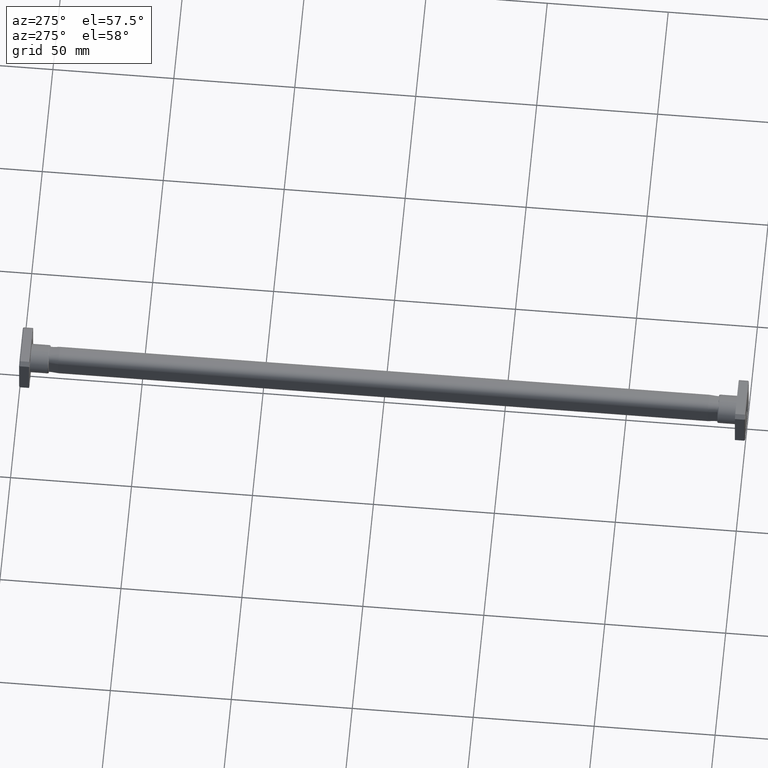
[diagram: clean part render]
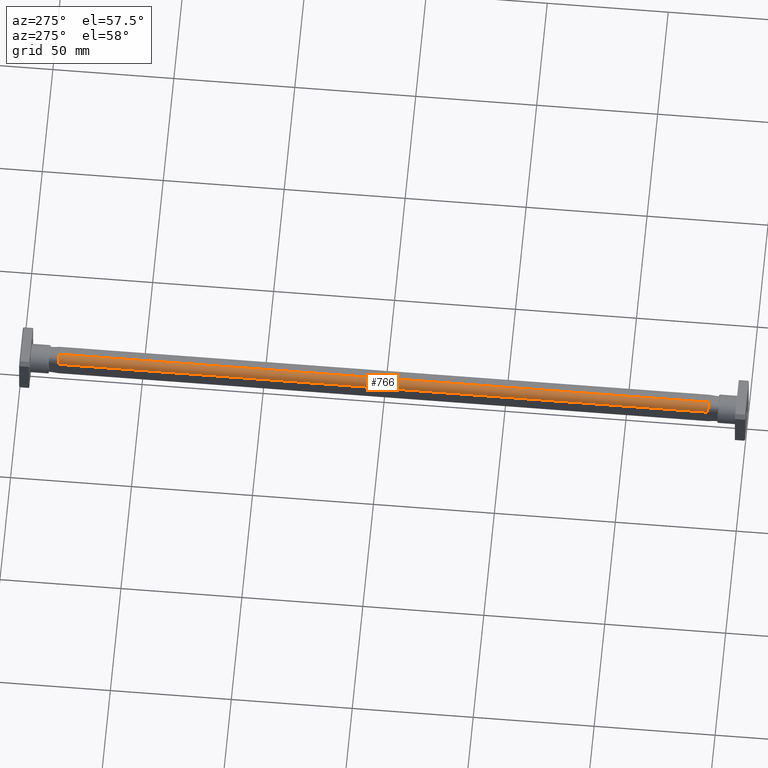
[diagram: same view with one face highlighted and labeled with its STEP entity id]
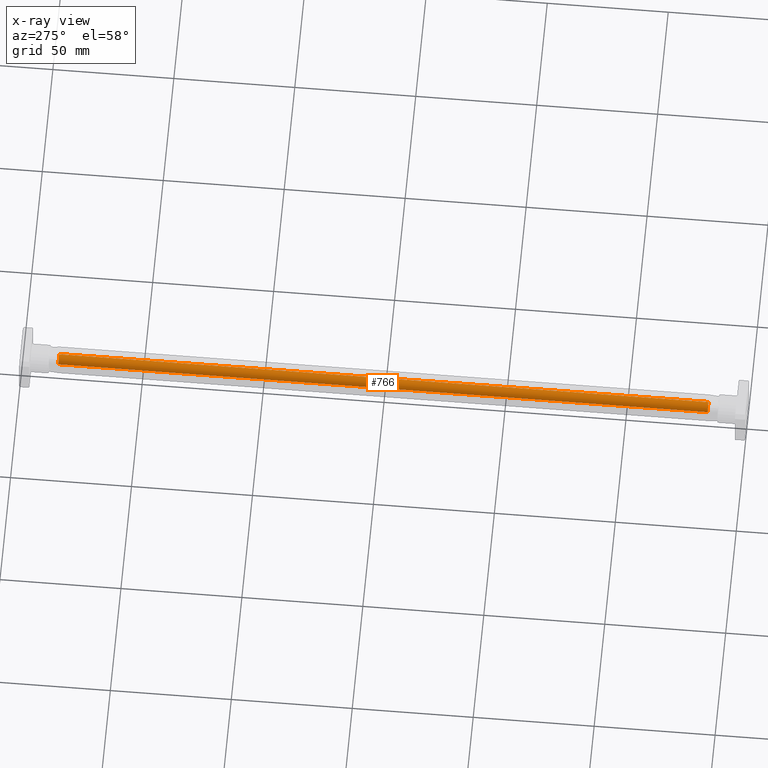
[diagram: x-ray of the same camera — body ghosted, the highlighted face saturated]
A machine part, auxiliary view. The second image highlights one B-rep face of the part: STEP entity #766.
The next image is the same camera in x-ray: the body ghosted, the highlighted face saturated — about 0% of this face is hidden behind the body in this view.
In plain terms, the highlighted cylindrical surface (edge-blend (fillet) strip) has radius 3 mm, axis along (0, -1, 0).
Its self-contained STEP definition (entity closure, byte-faithful):
#12 = DIRECTION ( 'NONE',  ( -3.469446951953613800E-015, 0.0000000000000000000, -1.000000000000000000 ) ) ;
#60 = DIRECTION ( 'NONE',  ( -0.0000000000000000000, 1.000000000000000000, -0.0000000000000000000 ) ) ;
#425 = CARTESIAN_POINT ( 'NONE',  ( -0.03937007874015724400, 11.18897637795275700, 0.1181102362204721300 ) ) ;
#442 = AXIS2_PLACEMENT_3D ( 'NONE', #425, #2720, #755 ) ;
#462 = ORIENTED_EDGE ( 'NONE', *, *, #948, .T. ) ;
#554 = ORIENTED_EDGE ( 'NONE', *, *, #2206, .T. ) ;
#596 = CARTESIAN_POINT ( 'NONE',  ( -0.03937007874015684100, 1.322834645669291700, 0.2362204724409446600 ) ) ;
#755 = DIRECTION ( 'NONE',  ( -3.469446951953613800E-015, 0.0000000000000000000, -1.000000000000000000 ) ) ;
#766 = ADVANCED_FACE ( 'Defeatured_0_14', ( #2513 ), #2410, .T. ) ;
#817 = VERTEX_POINT ( 'NONE', #2641 ) ;
#854 = AXIS2_PLACEMENT_3D ( 'NONE', #1606, #3921, #12 ) ;
#913 = DIRECTION ( 'NONE',  ( -0.0000000000000000000, 1.000000000000000000, -0.0000000000000000000 ) ) ;
#948 = EDGE_CURVE ( 'Defeatured_0_14+Defeatured_0_9+Defeatured_0_6+Defeatured_0_23', #963, #817, #2486, .T. ) ;
#963 = VERTEX_POINT ( 'NONE', #2818 ) ;
#977 = VECTOR ( 'NONE', #2725, 39.37007874015748100 ) ;
#1034 = VECTOR ( 'NONE', #913, 39.37007874015748100 ) ;
#1047 = DIRECTION ( 'NONE',  ( -3.469446951953613800E-015, 0.0000000000000000000, -1.000000000000000000 ) ) ;
#1400 = CARTESIAN_POINT ( 'NONE',  ( -0.1574803149606297000, 1.322834645669291700, 0.1181102362204725600 ) ) ;
#1606 = CARTESIAN_POINT ( 'NONE',  ( -0.03937007874015724400, 1.322834645669291700, 0.1181102362204721300 ) ) ;
#1608 = CARTESIAN_POINT ( 'NONE',  ( -0.1574803149605018800, 11.18897637795377900, 0.1181102362204725500 ) ) ;
#1691 = CARTESIAN_POINT ( 'NONE',  ( -0.03937007874015724400, 0.6220472440944879700, 0.1181102362204721300 ) ) ;
#1727 = EDGE_CURVE ( 'Defeatured_0_14+Defeatured_0_7+Defeatured_0_23+Defeatured_0_6', #3769, #2317, #2116, .T. ) ;
#1993 = CARTESIAN_POINT ( 'NONE',  ( -0.03937007874015684800, 11.18897637795275400, 0.2362204724409446300 ) ) ;
#2037 = EDGE_CURVE ( 'Defeatured_0_14+Defeatured_0_6+Defeatured_0_7+Defeatured_0_9', #2317, #963, #2746, .T. ) ;
#2116 = CIRCLE ( 'NONE', #442, 0.1181102362204724500 ) ;
#2206 = EDGE_CURVE ( 'Defeatured_0_14+Defeatured_0_23+Defeatured_0_9+Defeatured_0_7', #817, #3769, #3764, .T. ) ;
#2317 = VERTEX_POINT ( 'NONE', #1608 ) ;
#2410 = CYLINDRICAL_SURFACE ( 'NONE', #854, 0.1181102362204724500 ) ;
#2486 = CIRCLE ( 'NONE', #4165, 0.1181102362204724500 ) ;
#2513 = FACE_OUTER_BOUND ( 'NONE', #3729, .T. ) ;
#2641 = CARTESIAN_POINT ( 'NONE',  ( -0.03937007874015684800, 0.6220472440944879700, 0.2362204724409446300 ) ) ;
#2691 = ORIENTED_EDGE ( 'NONE', *, *, #2037, .T. ) ;
#2720 = DIRECTION ( 'NONE',  ( 0.0000000000000000000, -1.000000000000000000, 0.0000000000000000000 ) ) ;
#2725 = DIRECTION ( 'NONE',  ( 0.0000000000000000000, -1.000000000000000000, 0.0000000000000000000 ) ) ;
#2746 = LINE ( 'NONE', #1400, #977 ) ;
#2818 = CARTESIAN_POINT ( 'NONE',  ( -0.1574803149605018800, 0.6220472440934173800, 0.1181102362204725500 ) ) ;
#3729 = EDGE_LOOP ( 'NONE', ( #2691, #462, #554, #3731 ) ) ;
#3731 = ORIENTED_EDGE ( 'NONE', *, *, #1727, .T. ) ;
#3764 = LINE ( 'NONE', #596, #1034 ) ;
#3769 = VERTEX_POINT ( 'NONE', #1993 ) ;
#3921 = DIRECTION ( 'NONE',  ( 0.0000000000000000000, -1.000000000000000000, 0.0000000000000000000 ) ) ;
#4165 = AXIS2_PLACEMENT_3D ( 'NONE', #1691, #60, #1047 ) ;